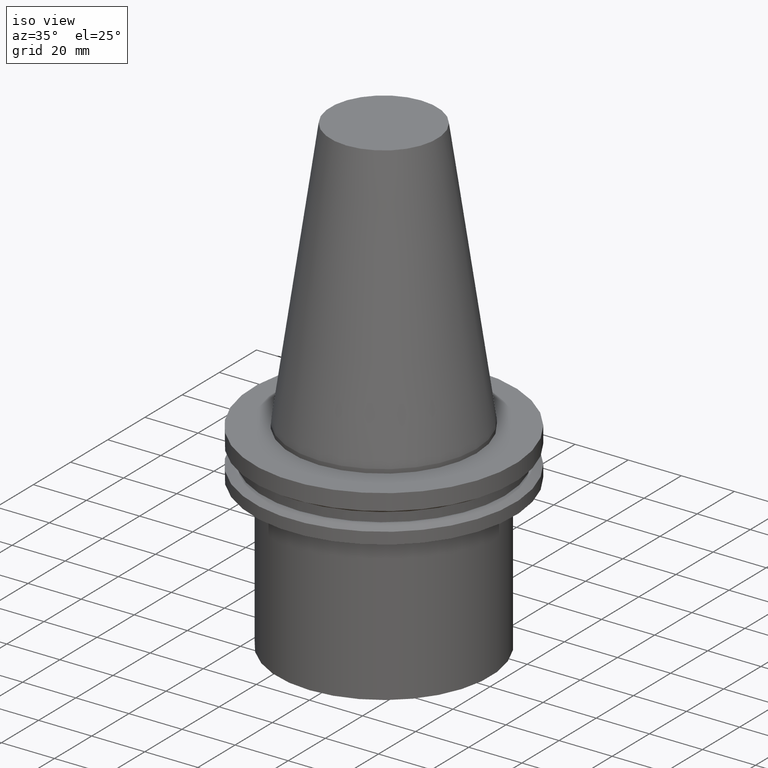
[diagram: clean part render]
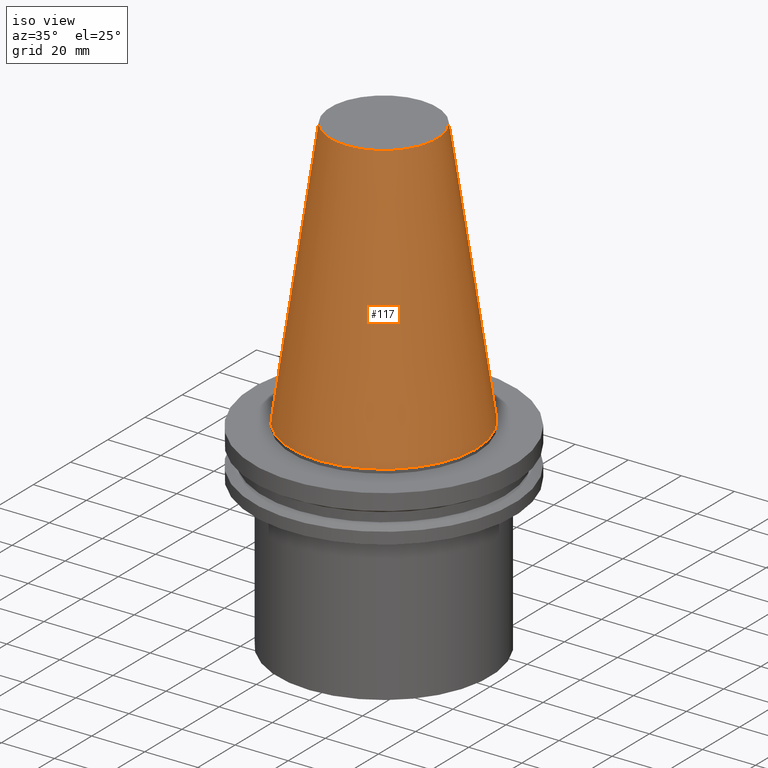
[diagram: same view with one face highlighted and labeled with its STEP entity id]
A machine part, iso view. The second image highlights one B-rep face of the part: STEP entity #117.
In plain terms, the highlighted conical surface has half-angle 8.297 deg.
Its self-contained STEP definition (entity closure, byte-faithful):
#82=EDGE_CURVE('Unnamed[1]',#188,#188,#189,.T.);
#98=EDGE_CURVE('Unnamed[1]',#214,#214,#215,.T.);
#117=ADVANCED_FACE('Unnamed[1]',(#243,#244),#245,.T.);
#188=VERTEX_POINT('',#323);
#189=CIRCLE('',#324,20.1083333333333);
#214=VERTEX_POINT('',#355);
#215=CIRCLE('',#356,34.925);
#243=FACE_BOUND('',#392,.T.);
#244=FACE_BOUND('',#393,.T.);
#245=CONICAL_SURFACE('',#394,27.5166666666666,0.144812498238938);
#323=CARTESIAN_POINT('',(-6.22120573966855E-015,20.1083333333332,101.6));
#324=AXIS2_PLACEMENT_3D('',#462,#463,#464);
#355=CARTESIAN_POINT('',(4.82986938111671E-029,34.925,-7.9153078510529E-013));
#356=AXIS2_PLACEMENT_3D('',#492,#493,#494);
#392=EDGE_LOOP('',(#523));
#393=EDGE_LOOP('',(#524));
#394=AXIS2_PLACEMENT_3D('',#525,#526,#527);
#462=CARTESIAN_POINT('',(-6.22120573966855E-015,-6.69400296345211E-014,101.6));
#463=DIRECTION('',(6.12323399573677E-017,7.3904466019126E-016,-1.0));
#464=DIRECTION('',(-5.00805866072768E-032,1.0,7.3904466019126E-016));
#492=CARTESIAN_POINT('',(5.04695054463486E-029,8.14690784091284E-015,-8.24229573481716E-013));
#493=DIRECTION('',(6.12323399573677E-017,7.39044660191275E-016,-1.0));
#494=DIRECTION('',(-5.00805866072784E-032,1.0,7.39044660191275E-016));
#523=ORIENTED_EDGE('',*,*,#98,.F.);
#524=ORIENTED_EDGE('',*,*,#82,.T.);
#525=CARTESIAN_POINT('',(-3.11060286983425E-015,-2.93965608968041E-014,50.7999999999996));
#526=DIRECTION('',(6.12323399573677E-017,7.39044660191299E-016,-1.0));
#527=DIRECTION('',(-5.00805866072819E-032,1.0,7.39044660191299E-016));